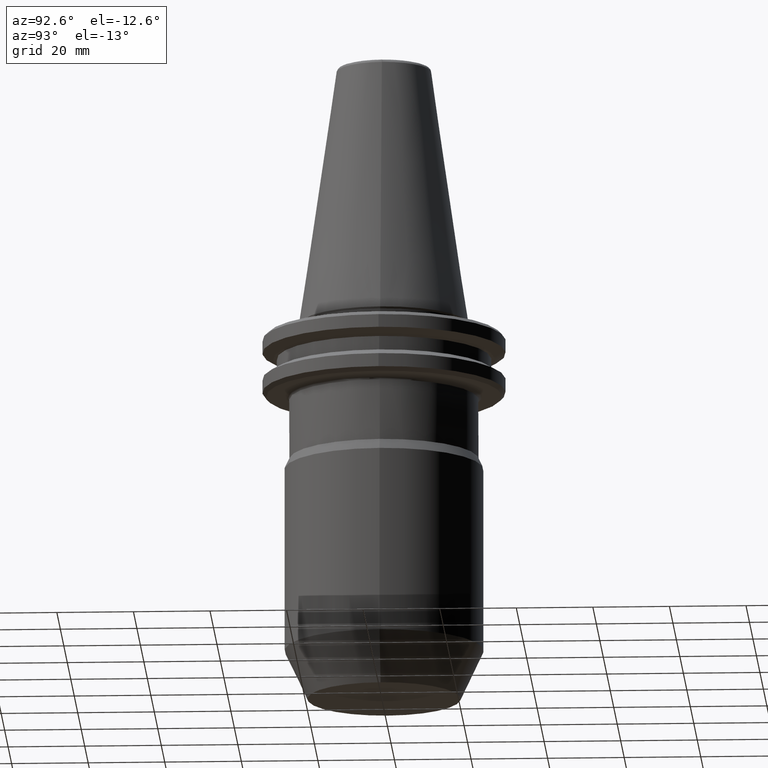
[diagram: clean part render]
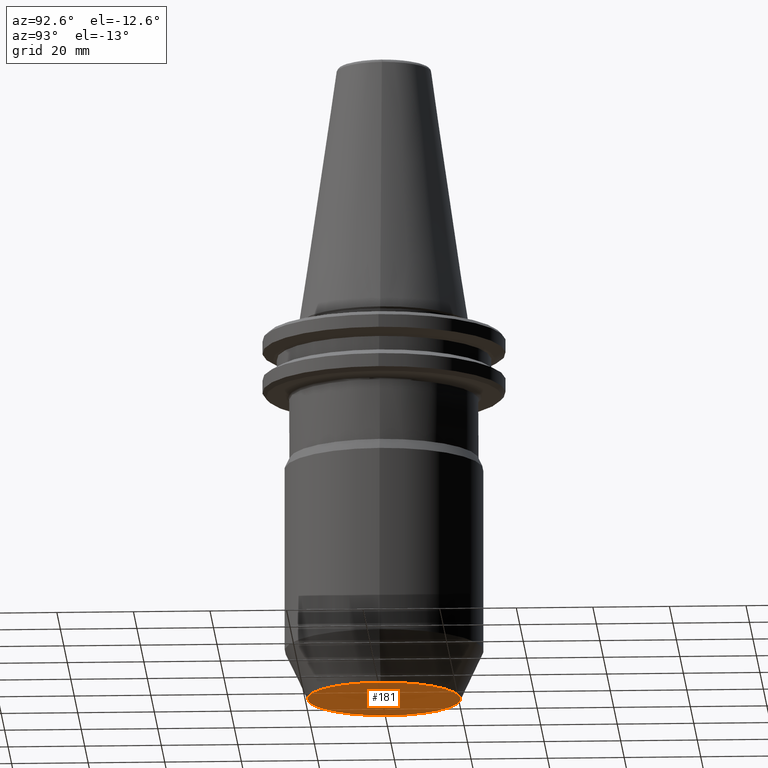
[diagram: same view with one face highlighted and labeled with its STEP entity id]
A machine part, auxiliary view. The second image highlights one B-rep face of the part: STEP entity #181.
In plain terms, the highlighted planar face has unit normal (0, 0, -1).
Its self-contained STEP definition (entity closure, byte-faithful):
#107 = DIRECTION ( 'NONE',  ( 1.000000000000000000, 0.0000000000000000000, 0.0000000000000000000 ) ) ;
#181 = ADVANCED_FACE ( 'NONE', ( #402 ), #848, .T. ) ;
#219 = AXIS2_PLACEMENT_3D ( 'NONE', #587, #1448, #426 ) ;
#221 = AXIS2_PLACEMENT_3D ( 'NONE', #624, #1517, #752 ) ;
#235 = CARTESIAN_POINT ( 'NONE',  ( 0.0000000000000000000, 0.0000000000000000000, -100.0000000000000000 ) ) ;
#402 = FACE_OUTER_BOUND ( 'NONE', #846, .T. ) ;
#426 = DIRECTION ( 'NONE',  ( -1.000000000000000000, 0.0000000000000000000, -0.0000000000000000000 ) ) ;
#587 = CARTESIAN_POINT ( 'NONE',  ( 0.0000000000000000000, 0.0000000000000000000, -100.0000000000000000 ) ) ;
#601 = CARTESIAN_POINT ( 'NONE',  ( -20.00000000000001100, 2.816687638038913500E-015, -100.0000000000000000 ) ) ;
#624 = CARTESIAN_POINT ( 'NONE',  ( 0.0000000000000000000, 0.0000000000000000000, -100.0000000000000000 ) ) ;
#728 = CARTESIAN_POINT ( 'NONE',  ( 20.00000000000001100, 0.0000000000000000000, -100.0000000000000000 ) ) ;
#752 = DIRECTION ( 'NONE',  ( 1.000000000000000000, 0.0000000000000000000, 0.0000000000000000000 ) ) ;
#763 = VERTEX_POINT ( 'NONE', #728 ) ;
#827 = VERTEX_POINT ( 'NONE', #601 ) ;
#846 = EDGE_LOOP ( 'NONE', ( #1142, #1337 ) ) ;
#848 = PLANE ( 'NONE',  #219 ) ;
#907 = CIRCLE ( 'NONE', #1332, 20.00000000000001100 ) ;
#928 = EDGE_CURVE ( 'NONE', #827, #763, #907, .T. ) ;
#994 = DIRECTION ( 'NONE',  ( 0.0000000000000000000, 0.0000000000000000000, 1.000000000000000000 ) ) ;
#1142 = ORIENTED_EDGE ( 'NONE', *, *, #1408, .F. ) ;
#1332 = AXIS2_PLACEMENT_3D ( 'NONE', #235, #994, #107 ) ;
#1337 = ORIENTED_EDGE ( 'NONE', *, *, #928, .F. ) ;
#1366 = CIRCLE ( 'NONE', #221, 20.00000000000001100 ) ;
#1408 = EDGE_CURVE ( 'NONE', #763, #827, #1366, .T. ) ;
#1448 = DIRECTION ( 'NONE',  ( 0.0000000000000000000, 0.0000000000000000000, -1.000000000000000000 ) ) ;
#1517 = DIRECTION ( 'NONE',  ( 0.0000000000000000000, 0.0000000000000000000, 1.000000000000000000 ) ) ;